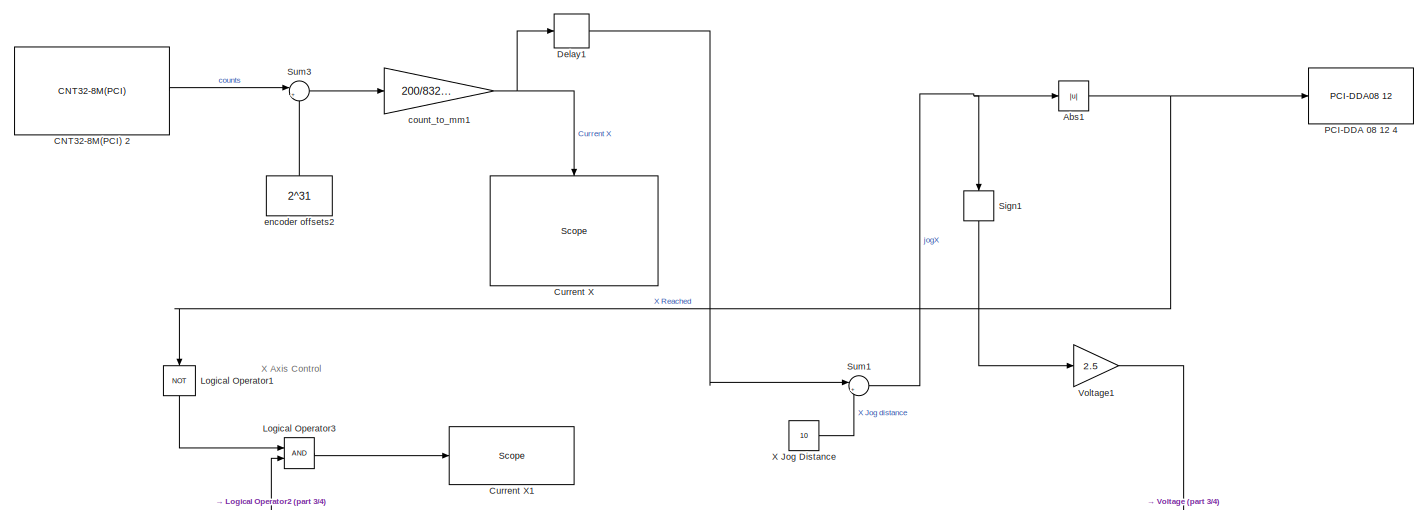
[diagram: root canvas - part 1/4, top center region]
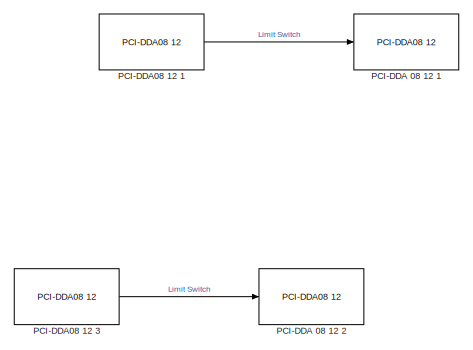
[diagram: root canvas - part 2/4, top right region]
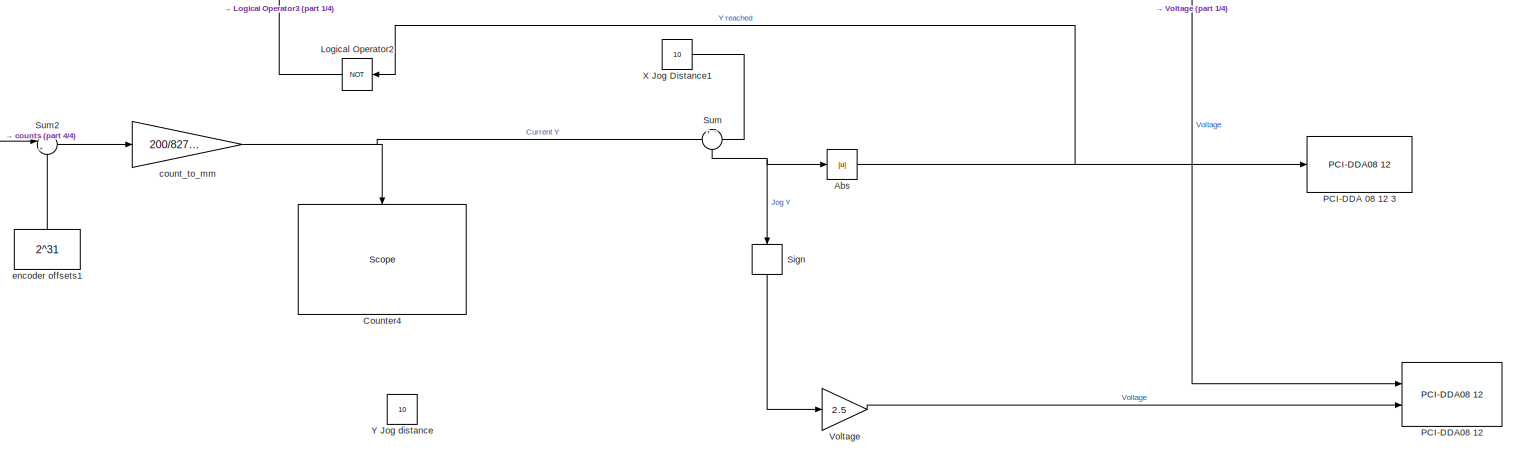
[diagram: root canvas - part 3/4, bottom center region]
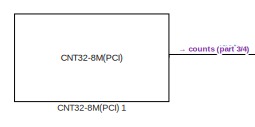
[diagram: root canvas - part 4/4, bottom left region]
MODEL slx_d9a75c8a66f6
KIND model
CONFIG AbsTol = auto
CONFIG FixedStep = auto
CONFIG MaxStep = auto
CONFIG MinStep = auto
CONFIG RelTol = 1e-3
CONFIG SampleTimeConstraint = Unconstrained
CONFIG Solver = ode4
CONFIG SolverMode = Auto
CONFIG SolverName = ode4
CONFIG StartTime = 0.0
CONFIG StopTime = inf
BLOCK [Abs] Abs
  SaturateOnIntegerOverflow = off
BLOCK [Abs] Abs1
  SaturateOnIntegerOverflow = off
BLOCK [Reference] CNT32-8M(PCI) 1  REF=xpcconteclib/Incremental
Encoder/CNT32-8M(PCI) 
  Ports = [0, 1]
  SourceBlock = xpcconteclib/Incremental\nEncoder/CNT32-8M(PCI)
  SourceType = encconteccnt328mpci
BLOCK [Reference] CNT32-8M(PCI) 2  REF=xpcconteclib/Incremental
Encoder/CNT32-8M(PCI) 
  Ports = [0, 1]
  SourceBlock = xpcconteclib/Incremental\nEncoder/CNT32-8M(PCI)
  SourceType = encconteccnt328mpci
BLOCK [Reference] Counter4  REF=slrtlib/Displays and
Logging/Scope 
  Ports = [1]
  SourceBlock = slrtlib/Displays and\nLogging/Scope
  SourceType = xpcscopeblock
BLOCK [Reference] Current X  REF=slrtlib/Displays and
Logging/Scope 
  Ports = [1]
  SourceBlock = slrtlib/Displays and\nLogging/Scope
  SourceType = xpcscopeblock
BLOCK [Reference] Current X1  REF=slrtlib/Displays and
Logging/Scope 
  Ports = [1]
  SourceBlock = slrtlib/Displays and\nLogging/Scope
  SourceType = xpcscopeblock
BLOCK [Delay] Delay1
  Commented = through
  DelayLength = 1000
  InitialCondition = 0
  InputPortMap = u0
  Ports = [1, 1]
BLOCK [Logic] Logical Operator1
  AllPortsSameDT = off
  Operator = NOT
  OutDataTypeStr = boolean
  Ports = [1, 1]
BLOCK [Logic] Logical Operator2
  AllPortsSameDT = off
  Operator = NOT
  OutDataTypeStr = boolean
  Ports = [1, 1]
BLOCK [Logic] Logical Operator3
  AllPortsSameDT = off
  OutDataTypeStr = boolean
  Ports = [2, 1]
BLOCK [Reference] PCI-DDA 08 12 1  REF=xpcmeasurementcomputinglib/Digital
Output/PCI-DDA08 12 
  Commented = on
  Ports = [1]
  SourceBlock = xpcmeasurementcomputinglib/Digital\nOutput/PCI-DDA08 12
  SourceType = docbpcidda0812
BLOCK [Reference] PCI-DDA 08 12 2  REF=xpcmeasurementcomputinglib/Digital
Output/PCI-DDA08 12 
  Commented = on
  Ports = [1]
  SourceBlock = xpcmeasurementcomputinglib/Digital\nOutput/PCI-DDA08 12
  SourceType = docbpcidda0812
BLOCK [Reference] PCI-DDA 08 12 3  REF=xpcmeasurementcomputinglib/Digital
Output/PCI-DDA08 12 
  Ports = [1]
  SourceBlock = xpcmeasurementcomputinglib/Digital\nOutput/PCI-DDA08 12
  SourceType = docbpcidda0812
BLOCK [Reference] PCI-DDA 08 12 4  REF=xpcmeasurementcomputinglib/Digital
Output/PCI-DDA08 12 
  Ports = [1]
  SourceBlock = xpcmeasurementcomputinglib/Digital\nOutput/PCI-DDA08 12
  SourceType = docbpcidda0812
BLOCK [Reference] PCI-DDA08 12   REF=xpcmeasurementcomputinglib/D//A/PCI-DDA08 12 
  Ports = [2]
  SourceBlock = xpcmeasurementcomputinglib/D//A/PCI-DDA08 12
  SourceType = dacbpcidda0812
BLOCK [Reference] PCI-DDA08 12 1  REF=xpcmeasurementcomputinglib/Digital
Input/PCI-DDA08 12 
  Ports = [0, 1]
  SourceBlock = xpcmeasurementcomputinglib/Digital\nInput/PCI-DDA08 12
  SourceType = dicbpcidda0812
BLOCK [Reference] PCI-DDA08 12 3  REF=xpcmeasurementcomputinglib/Digital
Input/PCI-DDA08 12 
  Commented = on
  Ports = [0, 1]
  SourceBlock = xpcmeasurementcomputinglib/Digital\nInput/PCI-DDA08 12
  SourceType = dicbpcidda0812
BLOCK [Signum] Sign
BLOCK [Signum] Sign1
BLOCK [Sum] Sum
  IconShape = round
  InputSameDT = off
  Inputs = +-
  OutDataTypeStr = Inherit: Inherit via internal rule
  Ports = [2, 1]
  SaturateOnIntegerOverflow = off
BLOCK [Sum] Sum1
  IconShape = round
  InputSameDT = off
  Inputs = |+-
  OutDataTypeStr = Inherit: Inherit via internal rule
  Ports = [2, 1]
  SaturateOnIntegerOverflow = off
BLOCK [Sum] Sum2
  IconShape = round
  InputSameDT = off
  Inputs = |+-
  OutDataTypeStr = Inherit: Inherit via internal rule
  Ports = [2, 1]
  SaturateOnIntegerOverflow = off
BLOCK [Sum] Sum3
  IconShape = round
  InputSameDT = off
  Inputs = |+-
  OutDataTypeStr = Inherit: Inherit via internal rule
  Ports = [2, 1]
  SaturateOnIntegerOverflow = off
BLOCK [Gain] Voltage
  Gain = 2.5
  OutDataTypeStr = Inherit: Inherit via internal rule
  ParamDataTypeStr = Inherit: Inherit via internal rule
  SaturateOnIntegerOverflow = off
BLOCK [Gain] Voltage1
  Gain = 2.5
  OutDataTypeStr = Inherit: Inherit via internal rule
  ParamDataTypeStr = Inherit: Inherit via internal rule
  SaturateOnIntegerOverflow = off
BLOCK [Constant] X Jog Distance
  Value = 10
BLOCK [Constant] X Jog Distance1
  Value = 10
BLOCK [Constant] Y Jog distance
  Commented = on
  Value = 10
BLOCK [Gain] count_to_mm
  Gain = 200/82720
  OutDataTypeStr = Inherit: Inherit via internal rule
  ParamDataTypeStr = Inherit: Inherit via internal rule
  SaturateOnIntegerOverflow = off
BLOCK [Gain] count_to_mm1
  Gain = 200/83289
  OutDataTypeStr = Inherit: Inherit via internal rule
  ParamDataTypeStr = Inherit: Inherit via internal rule
  SaturateOnIntegerOverflow = off
BLOCK [Constant] encoder offsets1
  Value = 2^31
BLOCK [Constant] encoder offsets2
  Value = 2^31
ANNOTATION (root): X Axis Control
NET Abs1:1 -> Logical Operator1:1, PCI-DDA 08 12 4:1
NET Abs:1 -> Logical Operator2:1, PCI-DDA 08 12 3:1
LINE CNT32-8M(PCI) 1:1 -> Sum2:1
LINE CNT32-8M(PCI) 2:1 -> Sum3:1
LINE Delay1:1 -> Sum1:1
LINE Logical Operator1:1 -> Logical Operator3:1
LINE Logical Operator2:1 -> Logical Operator3:2
LINE Logical Operator3:1 -> Current X1:1
LINE PCI-DDA08 12 1:1 -> PCI-DDA 08 12 1:1
LINE PCI-DDA08 12 3:1 -> PCI-DDA 08 12 2:1
LINE Sign1:1 -> Voltage1:1
LINE Sign:1 -> Voltage:1
NET Sum1:1 -> Abs1:1, Sign1:1
LINE Sum2:1 -> count_to_mm:1
LINE Sum3:1 -> count_to_mm1:1
NET Sum:1 -> Abs:1, Sign:1
LINE Voltage1:1 -> PCI-DDA08 12 :1
LINE Voltage:1 -> PCI-DDA08 12 :2
LINE X Jog Distance1:1 -> Sum:2
LINE X Jog Distance:1 -> Sum1:2
NET count_to_mm1:1 -> Current X:1, Delay1:1
NET count_to_mm:1 -> Counter4:1, Sum:1
LINE encoder offsets1:1 -> Sum2:2
LINE encoder offsets2:1 -> Sum3:2
note: NET lines group one-source signal fan-out (src -> all destinations, sorted); 1:1 wires keep LINE
